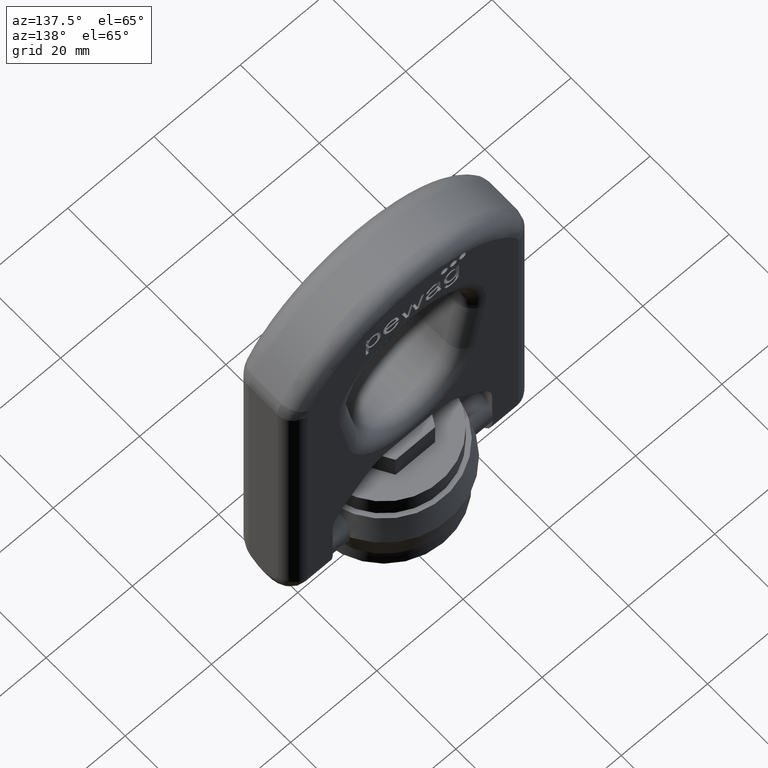
[diagram: clean part render]
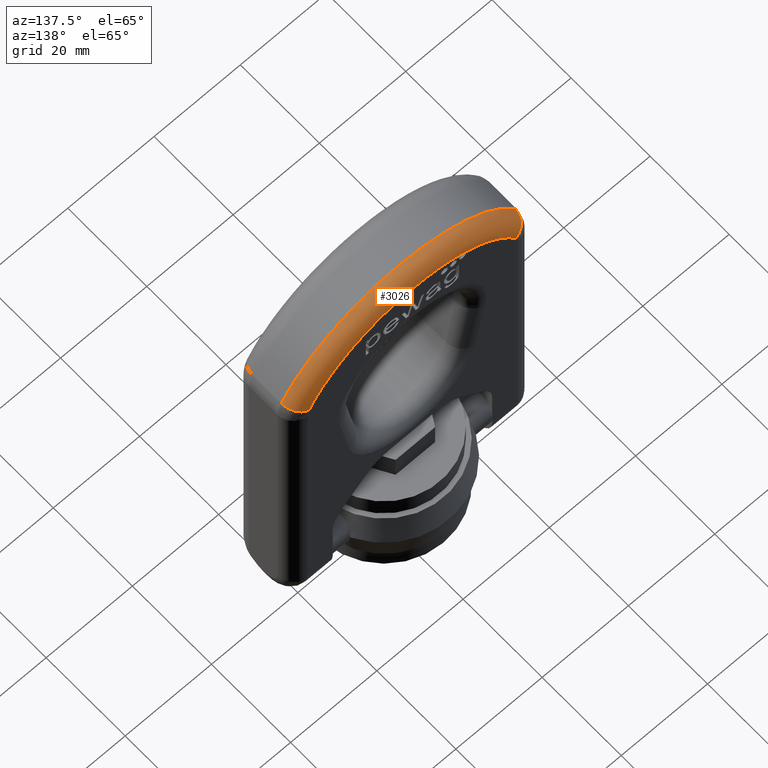
[diagram: same view with one face highlighted and labeled with its STEP entity id]
A machine part, auxiliary view. The second image highlights one B-rep face of the part: STEP entity #3026.
In plain terms, the highlighted toroidal blend (fillet) surface has major radius 27.1778 mm and minor (blend) radius 3.6 mm.
Its self-contained STEP definition (entity closure, byte-faithful):
#202=TOROIDAL_SURFACE('',#6041,27.1777777777778,3.6);
#2651=FACE_OUTER_BOUND('',#3419,.T.);
#3026=ADVANCED_FACE('',(#2651),#202,.T.);
#3419=EDGE_LOOP('',(#4641,#4642,#4643,#4644));
#4641=ORIENTED_EDGE('',*,*,#5734,.T.);
#4642=ORIENTED_EDGE('',*,*,#5369,.F.);
#4643=ORIENTED_EDGE('',*,*,#5736,.F.);
#4644=ORIENTED_EDGE('',*,*,#5280,.F.);
#4831=VERTEX_POINT('',#7404);
#4841=VERTEX_POINT('',#7426);
#4928=VERTEX_POINT('',#7762);
#4929=VERTEX_POINT('',#7764);
#5280=EDGE_CURVE('',#4841,#4831,#5783,.T.);
#5369=EDGE_CURVE('',#4928,#4929,#5791,.T.);
#5734=EDGE_CURVE('',#4841,#4929,#5812,.T.);
#5736=EDGE_CURVE('',#4831,#4928,#5814,.T.);
#5783=CIRCLE('',#5890,27.1777777777778);
#5791=CIRCLE('',#5904,30.7777777777778);
#5812=CIRCLE('',#6037,3.6);
#5814=CIRCLE('',#6040,3.6);
#5890=AXIS2_PLACEMENT_3D('',#7427,#6285,#6286);
#5904=AXIS2_PLACEMENT_3D('',#7763,#6360,#6361);
#6037=AXIS2_PLACEMENT_3D('',#9754,#6882,#6883);
#6040=AXIS2_PLACEMENT_3D('',#9773,#6888,#6889);
#6041=AXIS2_PLACEMENT_3D('',#9774,#6890,#6891);
#6285=DIRECTION('',(2.34291072916505E-15,1.,0.));
#6286=DIRECTION('',(-1.,2.32974923081922E-15,0.));
#6360=DIRECTION('',(-2.34291072916505E-15,-1.,0.));
#6361=DIRECTION('',(-1.,2.33905854973768E-15,0.));
#6882=DIRECTION('',(0.470899961611151,-9.07645798048268E-16,0.882186616399623));
#6883=DIRECTION('',(0.882186616399624,0.,-0.470899961611152));
#6888=DIRECTION('',(0.470899961611152,-9.07645798048269E-16,-0.882186616399623));
#6889=DIRECTION('',(-0.882186616399623,0.,-0.470899961611152));
#6890=DIRECTION('',(2.34291072916505E-15,1.,0.));
#6891=DIRECTION('',(-1.,2.33905854973768E-15,0.));
#7404=CARTESIAN_POINT('',(23.9758718190387,7.19999999999994,76.0202367344542));
#7426=CARTESIAN_POINT('',(-23.9758718190386,7.20000000000006,76.0202367344542));
#7427=CARTESIAN_POINT('',(8.43447862499418E-15,7.2,63.2222222222222));
#7762=CARTESIAN_POINT('',(27.1517436380773,3.59999999999993,77.7154765962543));
#7763=CARTESIAN_POINT('',(0.,3.59999999999999,63.2222222222222));
#7764=CARTESIAN_POINT('',(-27.1517436380773,3.60000000000006,77.7154765962543));
#9754=CARTESIAN_POINT('',(-23.9758718190386,3.60000000000006,76.0202367344542));
#9773=CARTESIAN_POINT('',(23.9758718190387,3.59999999999994,76.0202367344542));
#9774=CARTESIAN_POINT('',(0.,3.6,63.2222222222222));